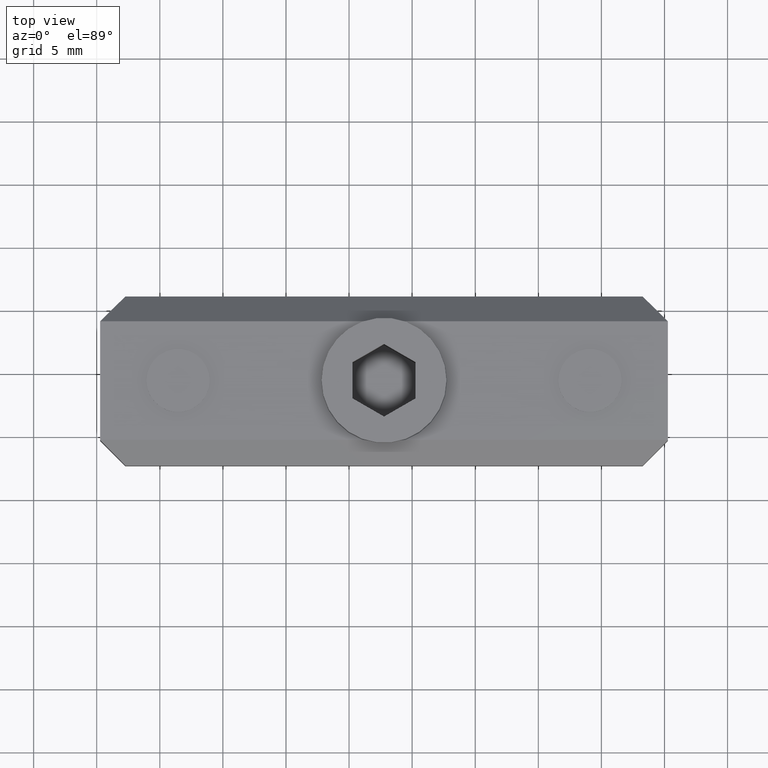
[diagram: clean part render]
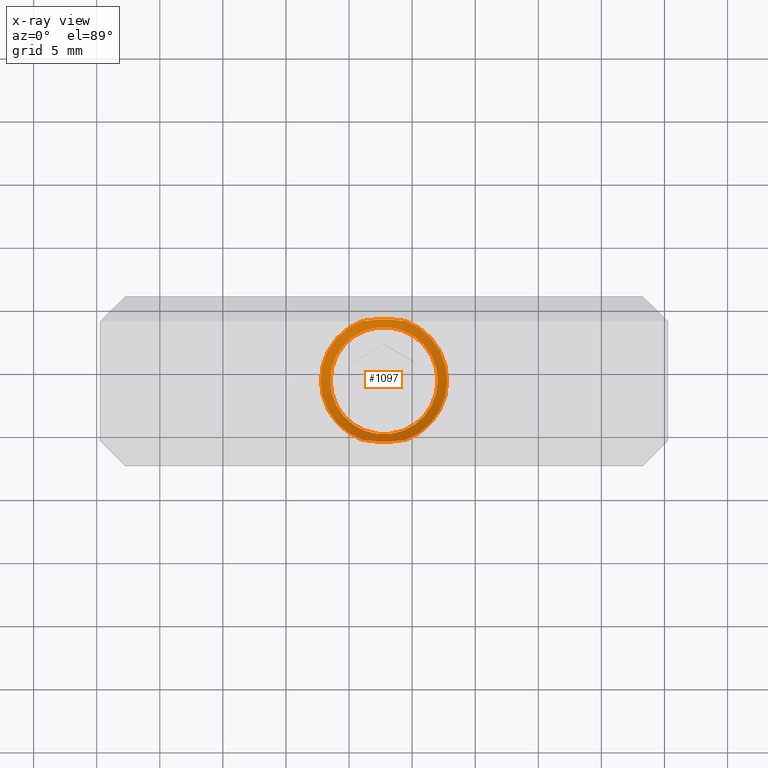
[diagram: x-ray — body ghosted, one internal face saturated and labeled with its STEP entity id]
A machine part, top view, then the same camera in x-ray: the body is ghosted and one INTERNAL B-rep face — a face not visible from any outside direction — is saturated and labeled: STEP entity #1097.
In plain terms, the highlighted conical surface has half-angle 45 deg.
Its self-contained STEP definition (entity closure, byte-faithful):
#15=(
BOUNDED_CURVE()
B_SPLINE_CURVE(2,(#1736,#1737,#1738),.UNSPECIFIED.,.F.,.F.)
B_SPLINE_CURVE_WITH_KNOTS((3,3),(0.,0.343802268753422),.UNSPECIFIED.)
CURVE()
GEOMETRIC_REPRESENTATION_ITEM()
RATIONAL_B_SPLINE_CURVE((1.,1.,1.))
REPRESENTATION_ITEM('')
);
#16=(
BOUNDED_CURVE()
B_SPLINE_CURVE(2,(#1742,#1743,#1744),.UNSPECIFIED.,.F.,.F.)
B_SPLINE_CURVE_WITH_KNOTS((3,3),(0.,0.343802268753422),.UNSPECIFIED.)
CURVE()
GEOMETRIC_REPRESENTATION_ITEM()
RATIONAL_B_SPLINE_CURVE((1.,1.,1.))
REPRESENTATION_ITEM('')
);
#32=CONICAL_SURFACE('',#1210,4.625,0.785398163397448);
#111=FACE_OUTER_BOUND('',#177,.T.);
#177=EDGE_LOOP('',(#850,#851,#852,#853,#854,#855,#856,#857,#858));
#258=LINE('',#1748,#355);
#355=VECTOR('',#1435,4.625);
#438=CIRCLE('',#1211,5.);
#439=CIRCLE('',#1212,5.);
#440=CIRCLE('',#1213,4.25);
#441=CIRCLE('',#1214,4.25);
#442=CIRCLE('',#1215,5.);
#509=VERTEX_POINT('',#1734);
#510=VERTEX_POINT('',#1735);
#511=VERTEX_POINT('',#1739);
#512=VERTEX_POINT('',#1741);
#513=VERTEX_POINT('',#1745);
#514=VERTEX_POINT('',#1747);
#515=VERTEX_POINT('',#1749);
#632=EDGE_CURVE('',#509,#510,#15,.T.);
#633=EDGE_CURVE('',#511,#509,#438,.T.);
#634=EDGE_CURVE('',#512,#511,#16,.T.);
#635=EDGE_CURVE('',#513,#512,#439,.T.);
#636=EDGE_CURVE('',#513,#514,#258,.T.);
#637=EDGE_CURVE('',#515,#514,#440,.T.);
#638=EDGE_CURVE('',#514,#515,#441,.T.);
#639=EDGE_CURVE('',#510,#513,#442,.T.);
#850=ORIENTED_EDGE('',*,*,#632,.F.);
#851=ORIENTED_EDGE('',*,*,#633,.F.);
#852=ORIENTED_EDGE('',*,*,#634,.F.);
#853=ORIENTED_EDGE('',*,*,#635,.F.);
#854=ORIENTED_EDGE('',*,*,#636,.T.);
#855=ORIENTED_EDGE('',*,*,#637,.F.);
#856=ORIENTED_EDGE('',*,*,#638,.F.);
#857=ORIENTED_EDGE('',*,*,#636,.F.);
#858=ORIENTED_EDGE('',*,*,#639,.F.);
#1097=ADVANCED_FACE('',(#111),#32,.F.);
#1210=AXIS2_PLACEMENT_3D('',#1733,#1429,#1430);
#1211=AXIS2_PLACEMENT_3D('',#1740,#1431,#1432);
#1212=AXIS2_PLACEMENT_3D('',#1746,#1433,#1434);
#1213=AXIS2_PLACEMENT_3D('',#1750,#1436,#1437);
#1214=AXIS2_PLACEMENT_3D('',#1751,#1438,#1439);
#1215=AXIS2_PLACEMENT_3D('',#1752,#1440,#1441);
#1429=DIRECTION('center_axis',(0.,0.,1.));
#1430=DIRECTION('ref_axis',(-1.,0.,0.));
#1431=DIRECTION('center_axis',(0.,0.,-1.));
#1432=DIRECTION('ref_axis',(-1.,0.,0.));
#1433=DIRECTION('center_axis',(0.,0.,-1.));
#1434=DIRECTION('ref_axis',(-1.,0.,0.));
#1435=DIRECTION('',(-0.707106781186547,-8.65956056235493E-17,-0.707106781186548));
#1436=DIRECTION('center_axis',(0.,0.,1.));
#1437=DIRECTION('ref_axis',(-1.,0.,0.));
#1438=DIRECTION('center_axis',(0.,0.,1.));
#1439=DIRECTION('ref_axis',(-1.,0.,0.));
#1440=DIRECTION('center_axis',(0.,0.,-1.));
#1441=DIRECTION('ref_axis',(-1.,0.,0.));
#1733=CARTESIAN_POINT('Origin',(7.7694867566475,18.9327112716979,19.3797064391074));
#1734=CARTESIAN_POINT('',(6.0636145457243,23.6327112716979,19.7547064391074));
#1735=CARTESIAN_POINT('',(9.4753589675707,23.6327112716979,19.7547064391074));
#1736=CARTESIAN_POINT('Ctrl Pts',(6.0636145457243,23.6327112716979,19.7547064391074));
#1737=CARTESIAN_POINT('Ctrl Pts',(7.7694867566475,23.9327112716979,19.4547064391074));
#1738=CARTESIAN_POINT('Ctrl Pts',(9.4753589675707,23.6327112716979,19.7547064391074));
#1739=CARTESIAN_POINT('',(6.0636145457243,14.2327112716979,19.7547064391074));
#1740=CARTESIAN_POINT('Origin',(7.7694867566475,18.9327112716979,19.7547064391074));
#1741=CARTESIAN_POINT('',(9.4753589675707,14.2327112716979,19.7547064391074));
#1742=CARTESIAN_POINT('Ctrl Pts',(9.4753589675707,14.2327112716979,19.7547064391074));
#1743=CARTESIAN_POINT('Ctrl Pts',(7.7694867566475,13.9327112716979,19.4547064391074));
#1744=CARTESIAN_POINT('Ctrl Pts',(6.0636145457243,14.2327112716979,19.7547064391074));
#1745=CARTESIAN_POINT('',(12.7694867566475,18.9327112716979,19.7547064391074));
#1746=CARTESIAN_POINT('Origin',(7.7694867566475,18.9327112716979,19.7547064391074));
#1747=CARTESIAN_POINT('',(12.0194867566475,18.9327112716979,19.0047064391074));
#1748=CARTESIAN_POINT('',(12.3944867566475,18.9327112716979,19.3797064391074));
#1749=CARTESIAN_POINT('',(3.5194867566475,18.9327112716979,19.0047064391074));
#1750=CARTESIAN_POINT('Origin',(7.7694867566475,18.9327112716979,19.0047064391074));
#1751=CARTESIAN_POINT('Origin',(7.7694867566475,18.9327112716979,19.0047064391074));
#1752=CARTESIAN_POINT('Origin',(7.7694867566475,18.9327112716979,19.7547064391074));